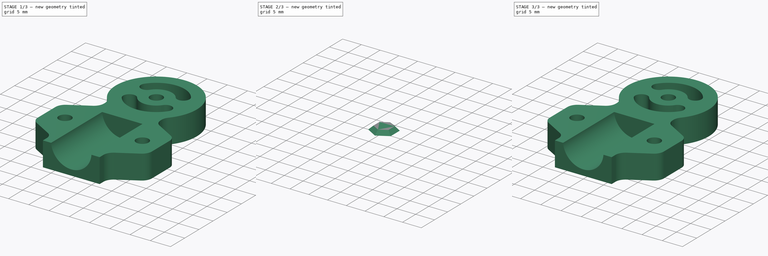
[diagram: build sequence overview — one tinted view per stage of 3, left to right]
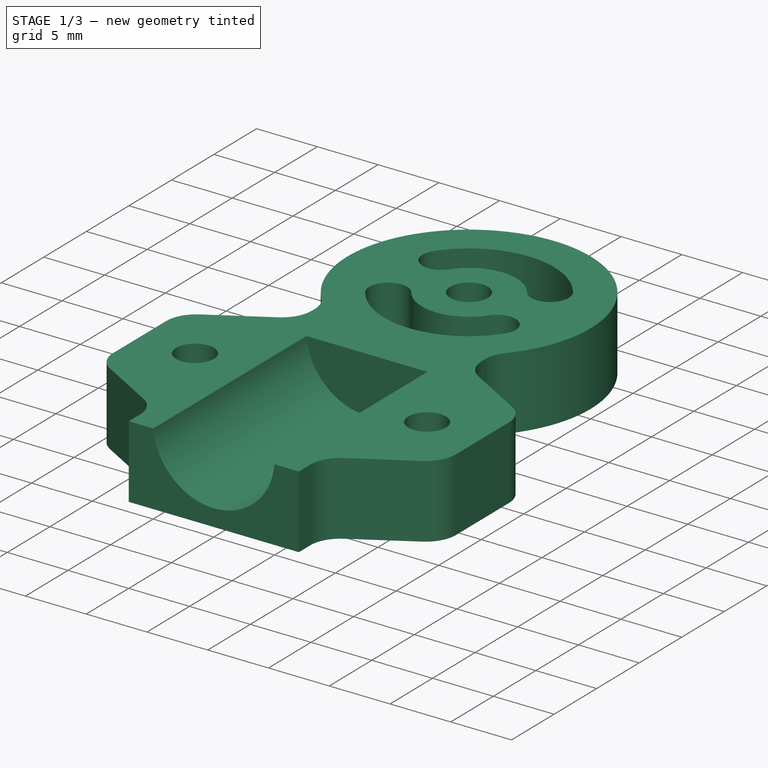
[diagram: stage 1 of 3 — iso view after this stage's code; geometry added in this stage tinted green]
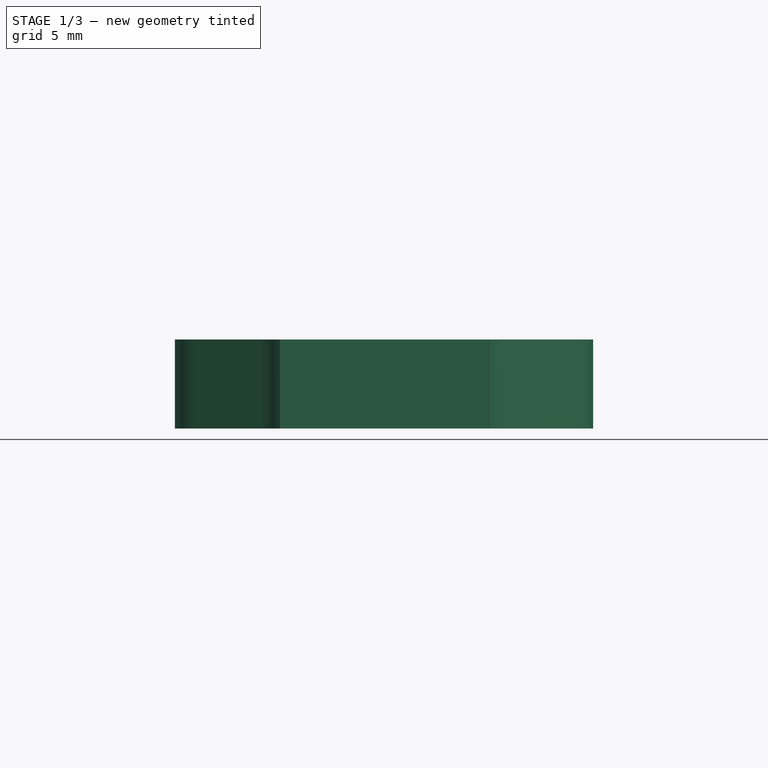
[diagram: stage 1 of 3 — front view after this stage's code; geometry added in this stage tinted green]
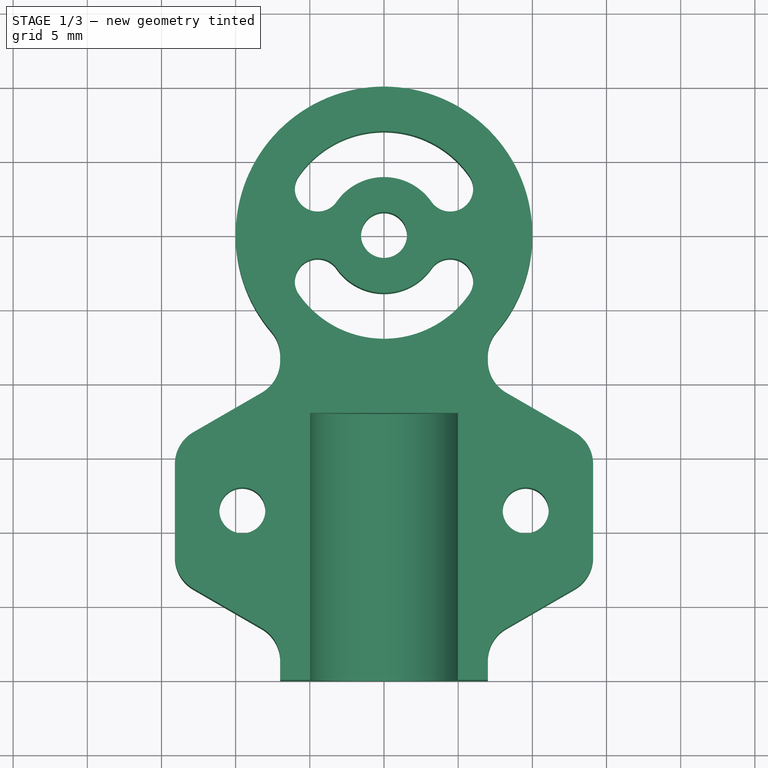
[diagram: stage 1 of 3 — top view after this stage's code; geometry added in this stage tinted green]
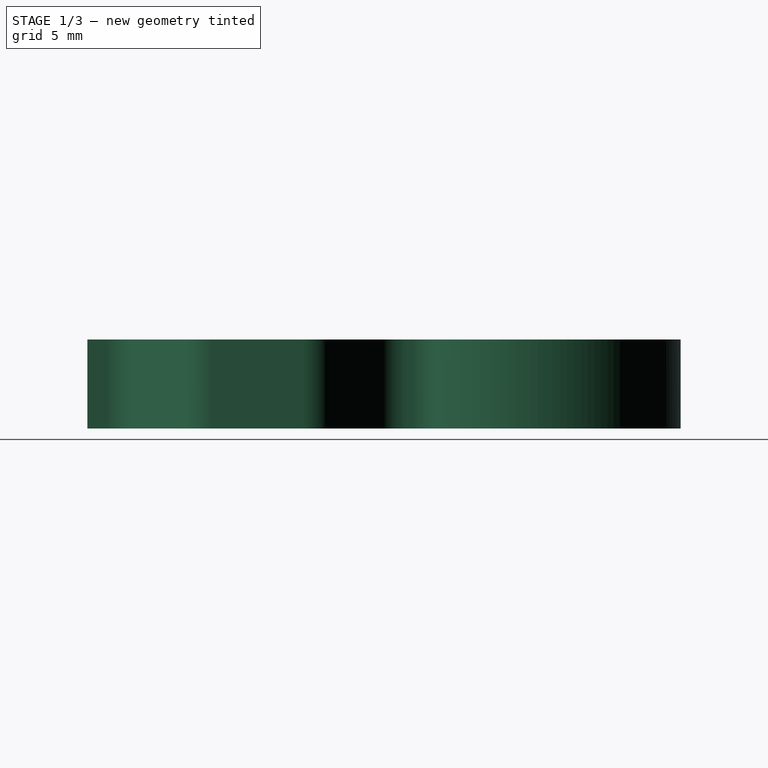
[diagram: stage 1 of 3 — right view after this stage's code; geometry added in this stage tinted green]
FCSTD DOCUMENT  (FreeCAD 0.16RUnknown)
Label: joint-i.003
License: All rights reserved
LicenseURL: http://en.wikipedia.org/wiki/All_rights_reserved
objects: Sketcher::SketchObject×4, Part::Extrusion×2, PartDesign::Pocket×2, Part::Cut×2, Part::Fillet×1, Part::Mirroring×1
note: 14 computed .brp shape members not serialized (recipe doc carries the construction recipe); baked Part::Feature solids carry a one-line shape summary decoded from their .brp

FEATURE [Sketcher::SketchObject] Sketch
  sketch-geometry (61):
    g0: LineSegment StartX=-7 StartY=-27.2199 StartZ=0 EndX=-7 EndY=-30 EndZ=0
    g1: LineSegment StartX=-7 StartY=-30 StartZ=0 EndX=7 EndY=-30 EndZ=0
    g2: LineSegment StartX=7 StartY=-30 StartZ=0 EndX=7 EndY=-27.2199 EndZ=0
    g3: LineSegment StartX=7 StartY=-27.2199 StartZ=0 EndX=14.1 EndY=-23.1207 EndZ=0
    g4: LineSegment StartX=14.1 StartY=-23.1207 StartZ=0 EndX=14.1 EndY=-14.0207 EndZ=0
    g5: LineSegment StartX=14.1 StartY=-14.0207 StartZ=0 EndX=7 EndY=-9.92153 EndZ=0
    g6: LineSegment StartX=7 StartY=-9.92153 StartZ=0 EndX=7 EndY=-7.14143 EndZ=0
    g7: LineSegment StartX=-7 StartY=-7.14143 StartZ=0 EndX=-7 EndY=-9.92153 EndZ=0
    g8: LineSegment StartX=-7 StartY=-9.92153 StartZ=0 EndX=-14.1 EndY=-14.0207 EndZ=0
    g9: LineSegment StartX=-14.1 StartY=-14.0207 StartZ=0 EndX=-14.1 EndY=-23.1207 EndZ=0
    g10: LineSegment StartX=-14.1 StartY=-23.1207 StartZ=0 EndX=-7 EndY=-27.2199 EndZ=0
    g11: LineSegment [constr] StartX=-14.1 StartY=-23.1207 StartZ=0 EndX=14.1 EndY=-23.1207 EndZ=0
    g12: LineSegment [constr] StartX=14.1 StartY=-14.0207 StartZ=0 EndX=-14.1 EndY=-14.0207 EndZ=0
    g13: ArcOfCircle [constr] CenterX=0 CenterY=0 CenterZ=0 NormalX=0 NormalY=0 NormalZ=1 Radius=10 StartAngle=3.93699 EndAngle=5.48779
    g14: ArcOfCircle CenterX=0 CenterY=0 CenterZ=0 NormalX=0 NormalY=0 NormalZ=1 Radius=10 StartAngle=5.48779 EndAngle=10.2202
    g15: LineSegment [constr] StartX=-7 StartY=-9.92153 StartZ=0 EndX=-7 EndY=-27.2199 EndZ=0
    g16: LineSegment [constr] StartX=7 StartY=-9.92153 StartZ=0 EndX=7 EndY=-27.2199 EndZ=0
    g17: GeomPoint [constr] X=0 Y=-10 Z=0
    g18: Circle CenterX=-9.55 CenterY=-18.5707 CenterZ=0 NormalX=0 NormalY=0 NormalZ=1 Radius=1.55
    g19: Circle CenterX=9.55 CenterY=-18.5707 CenterZ=0 NormalX=0 NormalY=0 NormalZ=1 Radius=1.55
    g20: ArcOfCircle [constr] CenterX=0 CenterY=0 CenterZ=0 NormalX=0 NormalY=0 NormalZ=1 Radius=7 StartAngle=2.53073 EndAngle=3.75246
    g21: ArcOfCircle [constr] CenterX=0 CenterY=0 CenterZ=0 NormalX=0 NormalY=0 NormalZ=1 Radius=3.9 StartAngle=2.53073 EndAngle=3.75246
    g22: ArcOfCircle [constr] CenterX=0 CenterY=0 CenterZ=0 NormalX=0 NormalY=0 NormalZ=1 Radius=3.9 StartAngle=5.67232 EndAngle=6.89405
    g23: ArcOfCircle [constr] CenterX=0 CenterY=0 CenterZ=0 NormalX=0 NormalY=0 NormalZ=1 Radius=7 StartAngle=5.67232 EndAngle=6.89405
    g24: ArcOfCircle CenterX=0 CenterY=0 CenterZ=0 NormalX=0 NormalY=0 NormalZ=1 Radius=3.9 StartAngle=0.610865 EndAngle=2.53073
    g25: ArcOfCircle CenterX=0 CenterY=0 CenterZ=0 NormalX=0 NormalY=0 NormalZ=1 Radius=7 StartAngle=0.610865 EndAngle=2.53073
    g26: ArcOfCircle CenterX=0 CenterY=0 CenterZ=0 NormalX=0 NormalY=0 NormalZ=1 Radius=3.9 StartAngle=3.75246 EndAngle=5.67232
    g27: ArcOfCircle CenterX=0 CenterY=0 CenterZ=0 NormalX=0 NormalY=0 NormalZ=1 Radius=7 StartAngle=3.75246 EndAngle=5.67232
    g28: LineSegment [constr] StartX=-5.73406 StartY=-4.01504 StartZ=0 EndX=-3.19469 EndY=-2.23695 EndZ=0
    g29: LineSegment [constr] StartX=-3.19469 StartY=-2.23695 StartZ=0 EndX=0 EndY=0 EndZ=0
    g30: LineSegment [constr] StartX=0 StartY=0 StartZ=0 EndX=3.19469 EndY=2.23695 EndZ=0
    g31: LineSegment [constr] StartX=3.19469 StartY=2.23695 StartZ=0 EndX=5.73406 EndY=4.01504 EndZ=0
    g32: LineSegment [constr] StartX=5.73406 StartY=4.01504 StartZ=0 EndX=8.19152 EndY=5.73576 EndZ=0
    g33: LineSegment [constr] StartX=-5.73406 StartY=4.01504 StartZ=0 EndX=-3.19469 EndY=2.23695 EndZ=0
    g34: LineSegment [constr] StartX=-3.19469 StartY=2.23695 StartZ=0 EndX=0 EndY=0 EndZ=0
    g35: LineSegment [constr] StartX=0 StartY=0 StartZ=0 EndX=3.19469 EndY=-2.23695 EndZ=0
    g36: LineSegment [constr] StartX=3.19469 StartY=-2.23695 StartZ=0 EndX=5.73406 EndY=-4.01504 EndZ=0
    g37: Circle CenterX=0 CenterY=0 CenterZ=0 NormalX=0 NormalY=0 NormalZ=1 Radius=1.55
    g38: LineSegment [constr] StartX=-3.19469 StartY=2.23695 StartZ=0 EndX=3.19469 EndY=2.23695 EndZ=0
    g39: ArcOfCircle CenterX=-4.46438 CenterY=3.12599 CenterZ=0 NormalX=0 NormalY=0 NormalZ=1 Radius=1.55 StartAngle=2.53073 EndAngle=5.67232
    g40: ArcOfCircle CenterX=-4.46438 CenterY=-3.12599 CenterZ=0 NormalX=0 NormalY=0 NormalZ=1 Radius=1.55 StartAngle=0.610865 EndAngle=3.75246
    g41: ArcOfCircle CenterX=4.46438 CenterY=-3.12599 CenterZ=0 NormalX=0 NormalY=0 NormalZ=1 Radius=1.55 StartAngle=5.67232 EndAngle=8.81391
    g42: ArcOfCircle CenterX=4.46438 CenterY=3.12599 CenterZ=0 NormalX=0 NormalY=0 NormalZ=1 Radius=1.55 StartAngle=3.75246 EndAngle=6.89405
    g43: LineSegment [constr] StartX=-14.1 StartY=-18.5707 StartZ=0 EndX=-11.1 EndY=-18.5707 EndZ=0
    g44: LineSegment [constr] StartX=-11.1 StartY=-18.5707 StartZ=0 EndX=-9.55 EndY=-18.5707 EndZ=0
    g45: LineSegment [constr] StartX=9.55 StartY=-18.5707 StartZ=0 EndX=11.1 EndY=-18.5707 EndZ=0
    g46: LineSegment [constr] StartX=11.1 StartY=-18.5707 StartZ=0 EndX=14.1 EndY=-18.5707 EndZ=0
    g47: LineSegment [constr] StartX=5 StartY=-30 StartZ=0 EndX=5 EndY=-12 EndZ=0
    g48: LineSegment [constr] StartX=5 StartY=-12 StartZ=0 EndX=-5 EndY=-12 EndZ=0
    g49: LineSegment [constr] StartX=-5 StartY=-12 StartZ=0 EndX=-5 EndY=-30 EndZ=0
    g50: LineSegment [constr] StartX=-9.55 StartY=-18.5707 StartZ=0 EndX=-8 EndY=-18.5707 EndZ=0
    g51: LineSegment [constr] StartX=-8 StartY=-18.5707 StartZ=0 EndX=-5 EndY=-18.5707 EndZ=0
    g52: LineSegment [constr] StartX=-5 StartY=-18.5707 StartZ=0 EndX=0 EndY=-18.5707 EndZ=0
    g53: LineSegment [constr] StartX=0 StartY=-18.5707 StartZ=0 EndX=5 EndY=-18.5707 EndZ=0
    g54: LineSegment [constr] StartX=5 StartY=-18.5707 StartZ=0 EndX=8 EndY=-18.5707 EndZ=0
    g55: LineSegment [constr] StartX=8 StartY=-18.5707 StartZ=0 EndX=9.55 EndY=-18.5707 EndZ=0
    g56: LineSegment [constr] StartX=-9.55 StartY=-14.0207 StartZ=0 EndX=-9.55 EndY=-17.0207 EndZ=0
    g57: LineSegment [constr] StartX=-9.55 StartY=-17.0207 StartZ=0 EndX=-9.55 EndY=-18.5707 EndZ=0
    g58: LineSegment [constr] StartX=-9.55 StartY=-18.5707 StartZ=0 EndX=-9.55 EndY=-20.1207 EndZ=0
    g59: LineSegment [constr] StartX=-9.55 StartY=-20.1207 StartZ=0 EndX=-9.55 EndY=-23.1207 EndZ=0
    g60: LineSegment [constr] StartX=-7 StartY=-7.14143 StartZ=0 EndX=7 EndY=-7.14143 EndZ=0
  constraints (169):
    c: Vertical(g0)
    c: Coincident(g0,g1)
    c: Horizontal(g1)
    c: Coincident(g1,g2)
    c: Vertical(g2)
    c: Coincident(g2,g3)
    c: Coincident(g3,g4)
    c: Vertical(g4)
    c: Coincident(g4,g5)
    c: Coincident(g5,g6)
    c: Vertical(g6)
    c: Vertical(g7)
    c: Coincident(g7,g8)
    c: Coincident(g8,g9)
    c: Vertical(g9)
    c: Coincident(g9,g10)
    c: Coincident(g0,g10)
    c: Horizontal(g11)
    c: Horizontal(g12)
    c: Coincident(g8,g12)
    c: Coincident(g9,g11)
    c: Coincident(g3,g11)
    c: Coincident(g4,g12)
    c: Coincident(g7,g13)
    c: Coincident(g7,g14)
    c: Coincident(g6,g13)
    c: Coincident(g6,g14)
    c: Coincident(g13,g14)
    c: Vertical(g15)
    c: Vertical(g16)
    c: Coincident(g2,g16)
    c: Coincident(g5,g16)
    c: Coincident(g7,g15)
    c: Coincident(g0,g15)
    c: Equal(g8,g5)
    c: Equal(g5,g10)
    c: Equal(g10,g3)
    c: Coincident(g13,g-1)
    c: DistanceX(g1,g1) = 14
    c: Radius(g14) = 10
    c: PointOnObject(g17,g13)
    c: PointOnObject(g17,g-2)
    c: DistanceY(g1,g17) = 20
    c: Equal(g19,g18)
    c: Radius(g18) = 1.55
    c: Coincident(g13,g20)
    c: Coincident(g13,g21)
    c: Coincident(g13,g22)
    c: Coincident(g13,g23)
    c: Coincident(g13,g24)
    c: Coincident(g13,g25)
    c: Coincident(g13,g26)
    c: Coincident(g13,g27)
    c: Coincident(g23,g25)
    c: Coincident(g20,g25)
    c: Coincident(g21,g24)
    c: Coincident(g22,g24)
    c: Coincident(g22,g26)
    c: Coincident(g21,g26)
    c: Coincident(g20,g27)
    c: Coincident(g23,g27)
    c: Coincident(g28,g29)
    c: Coincident(g29,g30)
    c: Coincident(g30,g31)
    c: Coincident(g31,g32)
    c: PointOnObject(g32,g14)
    c: Coincident(g23,g31)
    c: Coincident(g22,g30)
    c: Coincident(g13,g29)
    c: Coincident(g21,g28)
    c: Coincident(g20,g28)
    c: Parallel(g28,g29)
    c: Parallel(g29,g30)
    c: Parallel(g30,g31)
    c: Parallel(g31,g32)
    c: Coincident(g33,g34)
    c: Coincident(g34,g35)
    c: Coincident(g35,g36)
    c: Coincident(g23,g36)
    c: Coincident(g22,g35)
    c: Coincident(g13,g34)
    c: Coincident(g21,g33)
    c: Coincident(g20,g33)
    c: Parallel(g33,g34)
    c: Parallel(g34,g35)
    c: Parallel(g35,g36)
    c: Distance(g32) = 3
    c: Distance(g31) = 3.1
    c: Coincident(g13,g37)
    c: Equal(g37,g18)
    c: Horizontal(g38)
    c: Coincident(g22,g38)
    c: Coincident(g21,g38)
    c: Angle(g34,g29) = 1.22173
    c: Coincident(g22,g42)
    c: Coincident(g23,g42)
    c: Coincident(g21,g39)
    c: Coincident(g20,g39)
    c: Coincident(g21,g40)
    c: Coincident(g20,g40)
    c: Coincident(g22,g41)
    c: Coincident(g23,g41)
    c: PointOnObject(g41,g36)
    c: PointOnObject(g42,g31)
    c: PointOnObject(g39,g33)
    c: PointOnObject(g40,g28)
    c: Horizontal(g43)
    c: Coincident(g43,g44)
    c: Horizontal(g44)
    c: Horizontal(g45)
    c: Coincident(g45,g46)
    c: Horizontal(g46)
    c: PointOnObject(g43,g9)
    c: Coincident(g18,g44)
    c: PointOnObject(g43,g18)
    c: PointOnObject(g46,g4)
    c: PointOnObject(g45,g19)
    c: DistanceX(g43,g43) = 3
    c: Coincident(g47,g48)
    c: Coincident(g48,g49)
    c: Horizontal(g48)
    c: Vertical(g47)
    c: Vertical(g49)
    c: PointOnObject(g49,g1)
    c: PointOnObject(g47,g1)
    c: DistanceX(g48,g48) = 10
    c: Horizontal(g50)
    c: Coincident(g50,g51)
    c: Horizontal(g51)
    c: Coincident(g51,g52)
    c: Horizontal(g52)
    c: Coincident(g52,g53)
    c: Horizontal(g53)
    c: Coincident(g53,g54)
    c: Horizontal(g54)
    c: Coincident(g54,g55)
    c: Horizontal(g55)
    c: Coincident(g19,g45)
    c: Coincident(g19,g55)
    c: PointOnObject(g54,g19)
    c: PointOnObject(g53,g47)
    c: PointOnObject(g51,g49)
    c: PointOnObject(g50,g18)
    c: Coincident(g18,g50)
    c: PointOnObject(g52,g-2)
    c: Equal(g52,g53)
    c: DistanceY(g47,g17) = 2
    c: Vertical(g56)
    c: Coincident(g56,g57)
    c: Vertical(g57)
    c: Coincident(g57,g58)
    c: Vertical(g58)
    c: Coincident(g58,g59)
    c: Vertical(g59)
    c: Coincident(g18,g57)
    c: PointOnObject(g56,g18)
    c: PointOnObject(g56,g12)
    c: PointOnObject(g59,g11)
    c: PointOnObject(g58,g18)
    c: Equal(g43,g56)
    c: Equal(g56,g59)
    c: Equal(g59,g51)
    c: Equal(g51,g54)
    c: Equal(g54,g46)
    c: Equal(g7,g0)
    c: Horizontal(g60)
    c: Coincident(g6,g60)
    c: Coincident(g7,g60)
    c: Angle(g8,g15) = 1.0472
FEATURE [Part::Extrusion] Extrude
  Base = -> Sketch
  Dir = (0,0,6)
  Solid = true
FEATURE [Sketcher::SketchObject] Sketch001
  ExternalGeometry = -> [Extrude]
  Placement = pos=(0,-30,0) rot=(1,0,0;1.5708rad)
  Support = -> Extrude [Face2]
  sketch-geometry (5):
    g0: LineSegment [constr] StartX=-7 StartY=6 StartZ=0 EndX=-7 EndY=6.4 EndZ=0
    g1: LineSegment [constr] StartX=-7 StartY=6.4 StartZ=0 EndX=0 EndY=6.4 EndZ=0
    g2: LineSegment [constr] StartX=0 StartY=6.4 StartZ=0 EndX=7 EndY=6.4 EndZ=0
    g3: LineSegment [constr] StartX=7 StartY=6.4 StartZ=0 EndX=7 EndY=6 EndZ=0
    g4: Circle CenterX=0 CenterY=6.4 CenterZ=0 NormalX=0 NormalY=0 NormalZ=1 Radius=5
  constraints (13):
    c: Vertical(g0)
    c: Coincident(g0,g1)
    c: Horizontal(g1)
    c: Coincident(g1,g2)
    c: Horizontal(g2)
    c: Coincident(g2,g3)
    c: Vertical(g3)
    c: Coincident(g3,g-3)
    c: Coincident(g0,g-3)
    c: PointOnObject(g1,g-2)
    c: DistanceY(g0,g0) = 0.4
    c: Coincident(g1,g4)
    c: Radius(g4) = 5
FEATURE [PartDesign::Pocket] Pocket
  Length = 18
  Sketch = -> Sketch001
  Type = 0
FEATURE [Part::Fillet] Fillet
  Base = -> Pocket
  Edges = 10 edges r=2.5: [Edge1,Edge5,Edge56,Edge57,Edge59,Edge60,Edge61,Edge62,Edge63,Edge64]
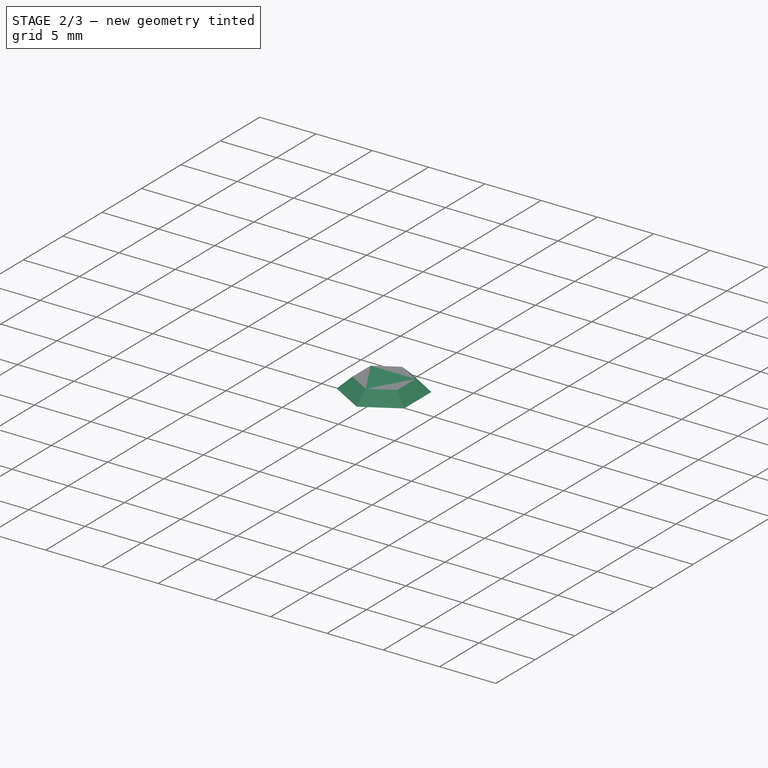
[diagram: stage 2 of 3 — iso view after this stage's code; geometry added in this stage tinted green]
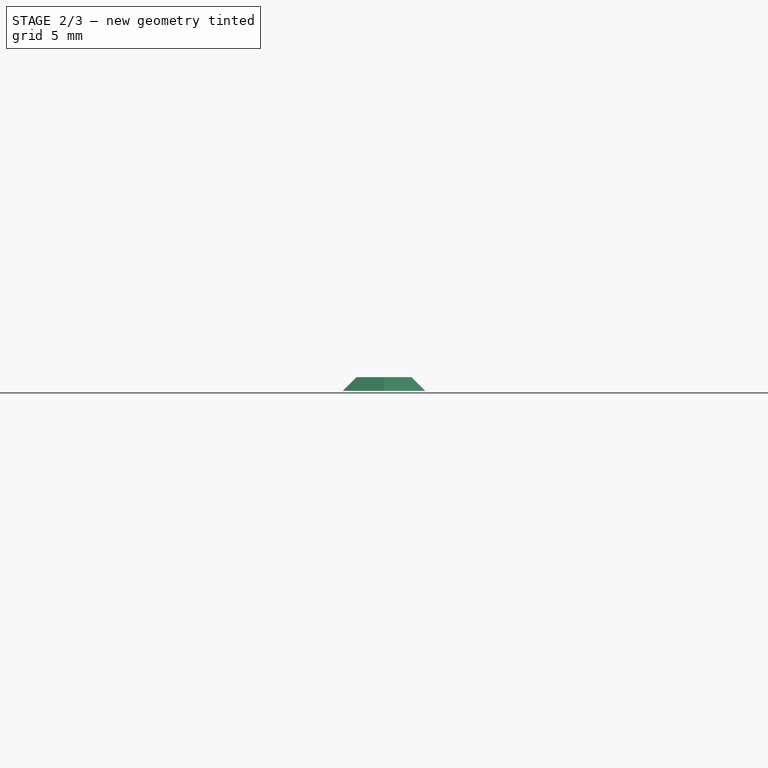
[diagram: stage 2 of 3 — front view after this stage's code; geometry added in this stage tinted green]
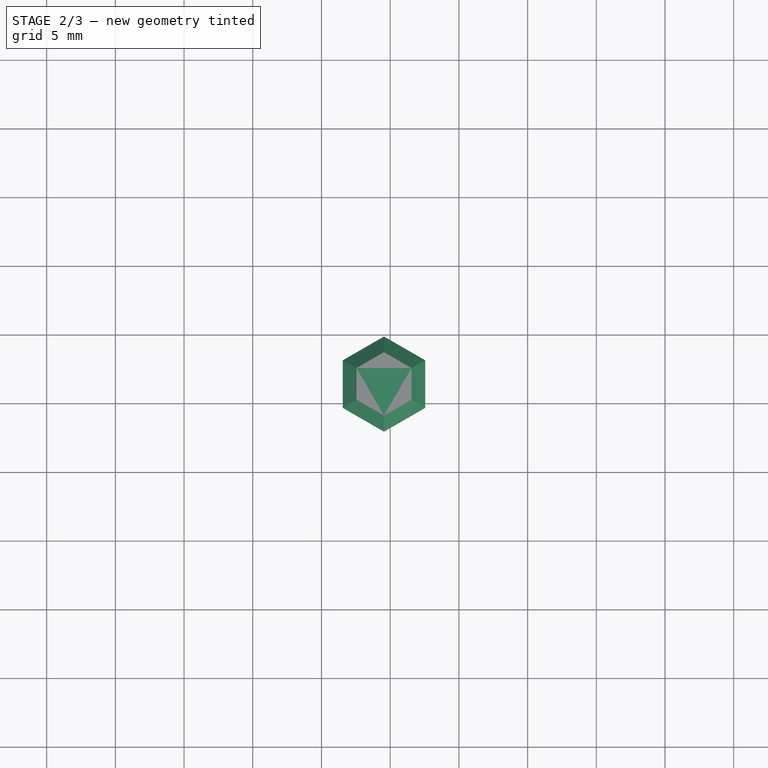
[diagram: stage 2 of 3 — top view after this stage's code; geometry added in this stage tinted green]
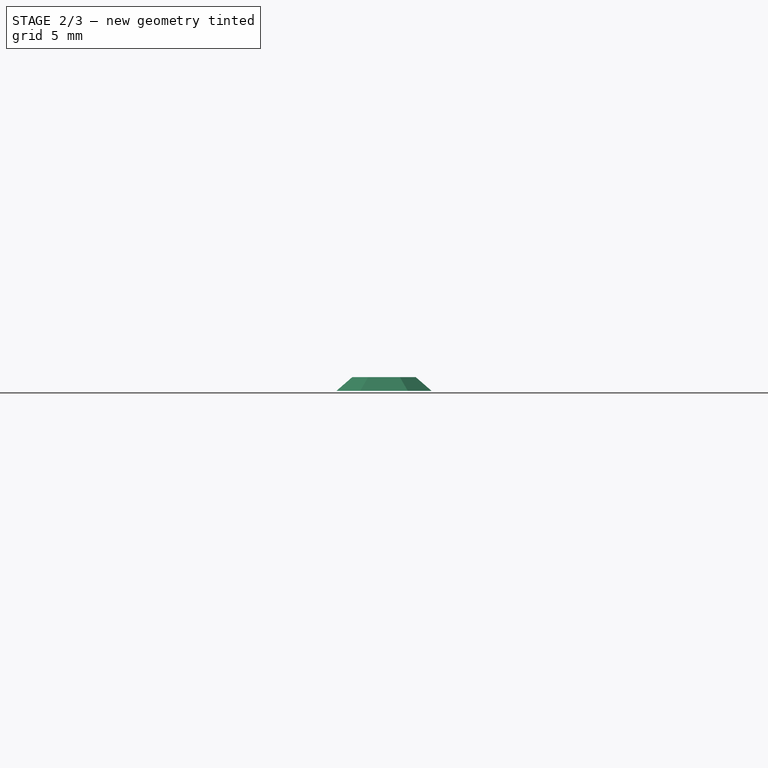
[diagram: stage 2 of 3 — right view after this stage's code; geometry added in this stage tinted green]
FEATURE [Sketcher::SketchObject] Sketch002
  ExternalGeometry = -> [Fillet]
  Placement = pos=(0,0,0) rot=(1,0,0;3.14159rad)
  Support = -> Fillet [Face2]
  sketch-geometry (14):
    g0: Circle [constr] CenterX=-9.55 CenterY=18.5707 CenterZ=0 NormalX=0 NormalY=0 NormalZ=1 Radius=3.4641
    g1: Circle [constr] CenterX=9.55 CenterY=18.5707 CenterZ=0 NormalX=0 NormalY=0 NormalZ=1 Radius=3.4641
    g2: LineSegment StartX=-12.55 StartY=16.8387 StartZ=0 EndX=-12.55 EndY=20.3028 EndZ=0
    g3: LineSegment StartX=-12.55 StartY=20.3028 StartZ=0 EndX=-9.55 EndY=22.0348 EndZ=0
    g4: LineSegment StartX=-9.55 StartY=22.0348 StartZ=0 EndX=-6.55 EndY=20.3028 EndZ=0
    g5: LineSegment StartX=-6.55 StartY=20.3028 StartZ=0 EndX=-6.55 EndY=16.8387 EndZ=0
    g6: LineSegment StartX=-6.55 StartY=16.8387 StartZ=0 EndX=-9.55 EndY=15.1066 EndZ=0
    g7: LineSegment StartX=-9.55 StartY=15.1066 StartZ=0 EndX=-12.55 EndY=16.8387 EndZ=0
    g8: LineSegment StartX=6.55 StartY=16.8387 StartZ=0 EndX=6.55 EndY=20.3028 EndZ=0
    g9: LineSegment StartX=6.55 StartY=20.3028 StartZ=0 EndX=9.55 EndY=22.0348 EndZ=0
    g10: LineSegment StartX=9.55 StartY=22.0348 StartZ=0 EndX=12.55 EndY=20.3028 EndZ=0
    g11: LineSegment StartX=12.55 StartY=20.3028 StartZ=0 EndX=12.55 EndY=16.8387 EndZ=0
    g12: LineSegment StartX=12.55 StartY=16.8387 StartZ=0 EndX=9.55 EndY=15.1066 EndZ=0
    g13: LineSegment StartX=9.55 StartY=15.1066 StartZ=0 EndX=6.55 EndY=16.8387 EndZ=0
  constraints (40):
    c: Vertical(g2)
    c: Coincident(g2,g3)
    c: Coincident(g3,g4)
    c: Coincident(g4,g5)
    c: Vertical(g5)
    c: Coincident(g5,g6)
    c: Coincident(g6,g7)
    c: Vertical(g8)
    c: Coincident(g8,g9)
    c: Coincident(g9,g10)
    c: Coincident(g10,g11)
    c: Vertical(g11)
    c: Coincident(g11,g12)
    c: Coincident(g12,g13)
    c: Coincident(g8,g13)
    c: Coincident(g2,g7)
    c: Equal(g2,g3)
    c: Equal(g3,g4)
    c: Equal(g4,g5)
    c: Equal(g5,g6)
    c: Equal(g6,g7)
    c: PointOnObject(g3,g0)
    c: PointOnObject(g2,g0)
    c: PointOnObject(g2,g0)
    c: PointOnObject(g4,g0)
    c: PointOnObject(g5,g0)
    c: Coincident(g-3,g0)
    c: Equal(g8,g9)
    c: Equal(g9,g10)
    c: Equal(g10,g11)
    c: Equal(g11,g12)
    c: Equal(g12,g13)
    c: PointOnObject(g9,g1)
    c: PointOnObject(g8,g1)
    c: PointOnObject(g10,g1)
    c: PointOnObject(g8,g1)
    c: PointOnObject(g11,g1)
    c: Coincident(g1,g-4)
    c: Equal(g1,g0)
    c: DistanceX(g2,g4) = 6
FEATURE [PartDesign::Pocket] Pocket001
  Length = 2
  Sketch = -> Sketch002
  Type = 0
FEATURE [Sketcher::SketchObject] Sketch003
  ExternalGeometry = -> [Pocket001]
  Placement = pos=(0,0,2) rot=(1,0,0;3.14159rad)
  Support = -> Pocket001 [Face50]
  sketch-geometry (6):
    g0: LineSegment StartX=6.55 StartY=16.8387 StartZ=0 EndX=6.55 EndY=20.3028 EndZ=0
    g1: LineSegment StartX=6.55 StartY=20.3028 StartZ=0 EndX=9.55 EndY=22.0348 EndZ=0
    g2: LineSegment StartX=9.55 StartY=22.0348 StartZ=0 EndX=12.55 EndY=20.3028 EndZ=0
    g3: LineSegment StartX=12.55 StartY=20.3028 StartZ=0 EndX=12.55 EndY=16.8387 EndZ=0
    g4: LineSegment StartX=12.55 StartY=16.8387 StartZ=0 EndX=9.55 EndY=15.1066 EndZ=0
    g5: LineSegment StartX=9.55 StartY=15.1066 StartZ=0 EndX=6.55 EndY=16.8387 EndZ=0
  constraints (12):
    c: Coincident(g0,g1)
    c: Coincident(g1,g2)
    c: Coincident(g2,g3)
    c: Coincident(g3,g4)
    c: Coincident(g4,g5)
    c: Coincident(g0,g5)
    c: Coincident(g0,g-8)
    c: Coincident(g0,g-8)
    c: Coincident(g1,g-4)
    c: Coincident(g2,g-5)
    c: Coincident(g3,g-6)
    c: Coincident(g4,g-7)
FEATURE [Part::Extrusion] Extrude001
  Base = -> Sketch003
  Dir = (0,0,1)
  Solid = true
  TaperAngle = -45
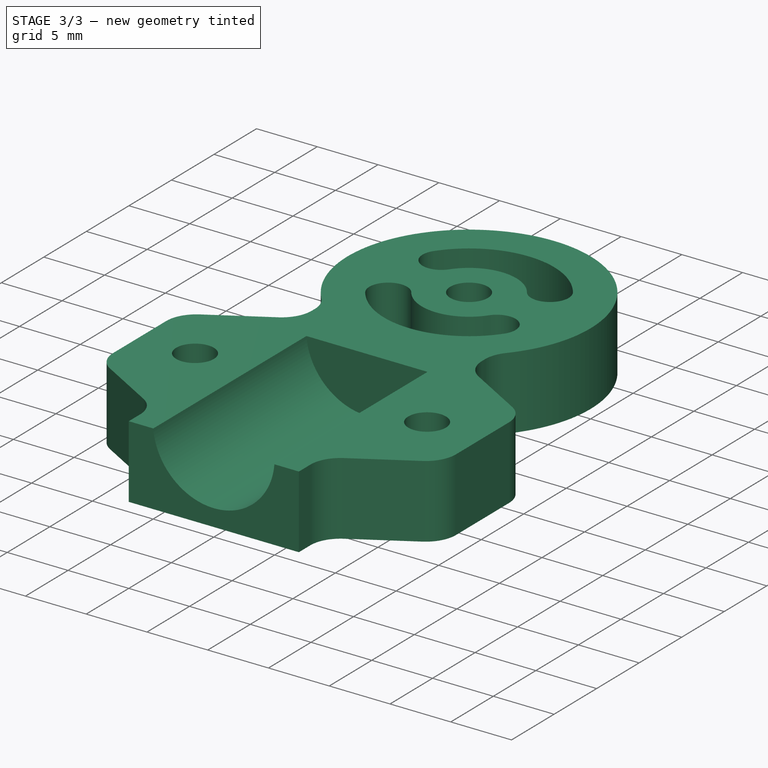
[diagram: stage 3 of 3 — iso view after this stage's code; geometry added in this stage tinted green]
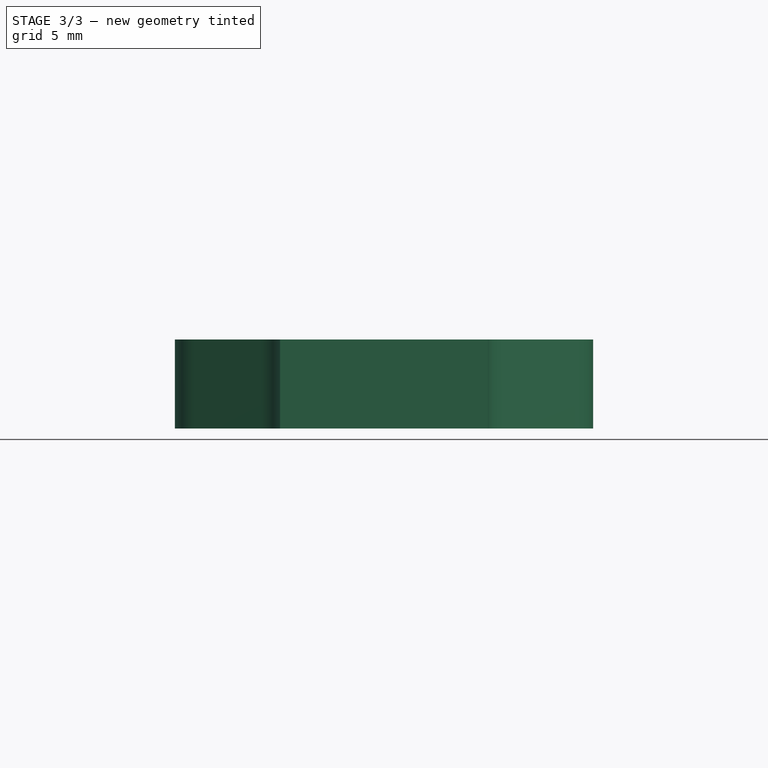
[diagram: stage 3 of 3 — front view after this stage's code; geometry added in this stage tinted green]
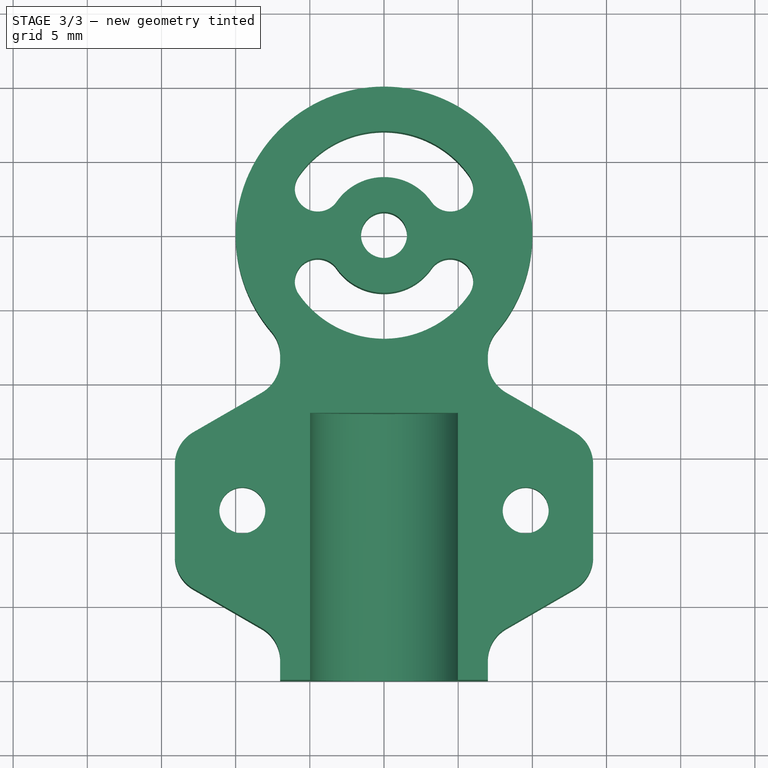
[diagram: stage 3 of 3 — top view after this stage's code; geometry added in this stage tinted green]
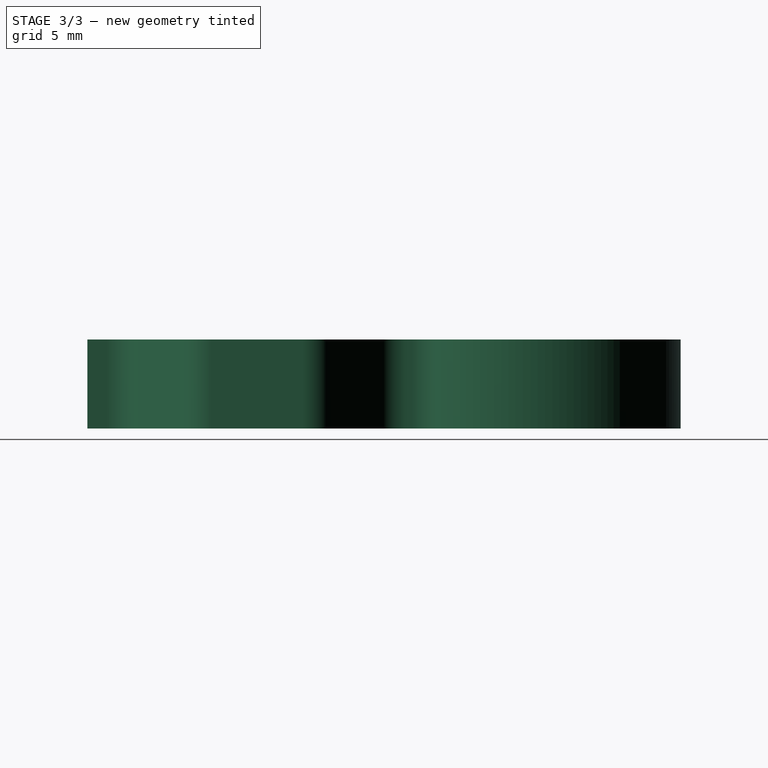
[diagram: stage 3 of 3 — right view after this stage's code; geometry added in this stage tinted green]
FEATURE [Part::Cut] Cut
  Base = -> Pocket001
  Tool = -> Extrude001
FEATURE [Part::Mirroring] Part__Mirroring  label="Extrude001 (Mirror #1)"
  Base = (0,0,0)
  Normal = (1,0,0)
  Source = -> Extrude001
FEATURE [Part::Cut] Cut001
  Base = -> Cut
  Tool = -> Part__Mirroring
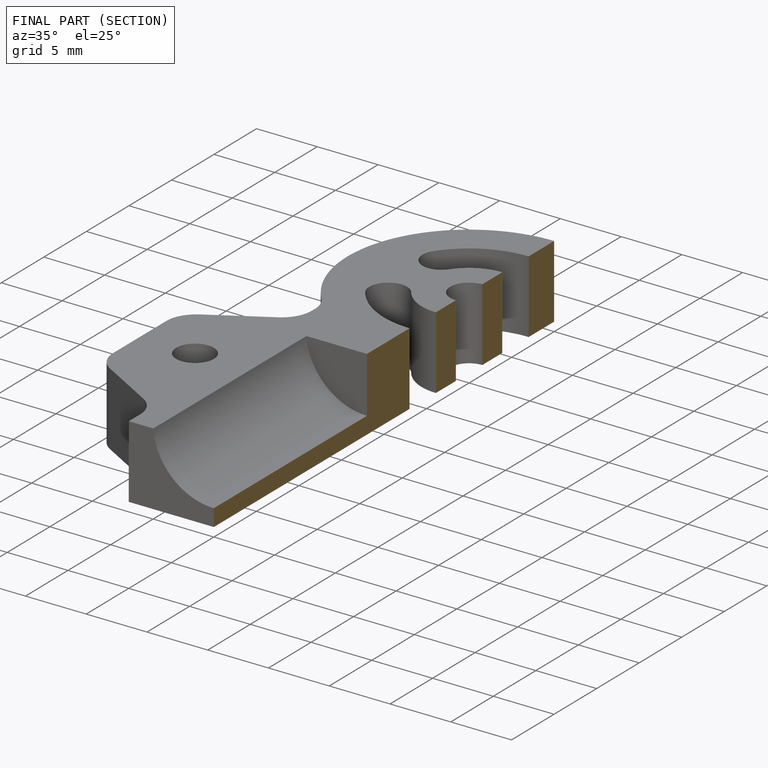
[diagram: finished part — half-section view (interior)]
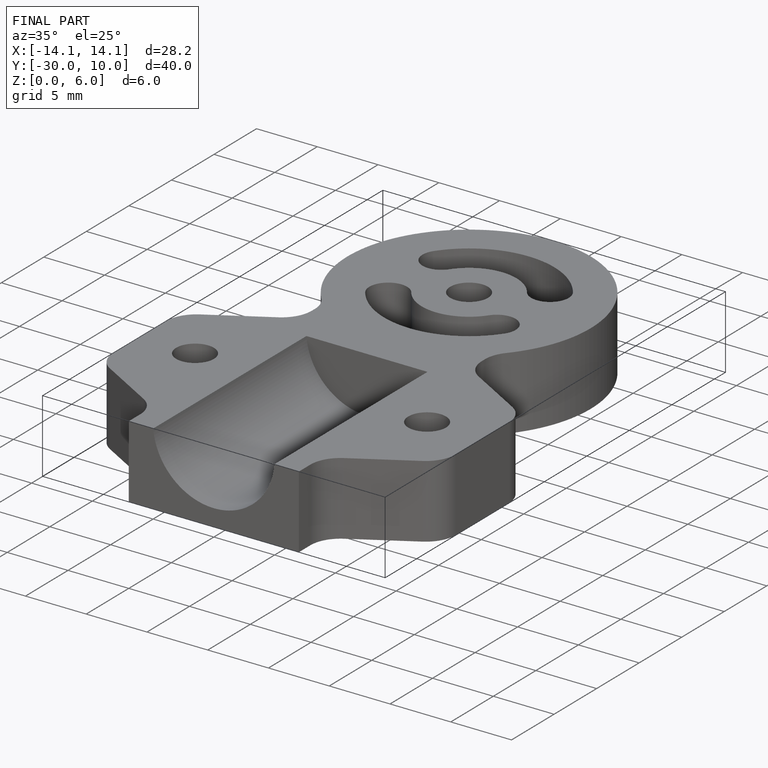
[diagram: finished part — iso view with bounding-box wireframe]
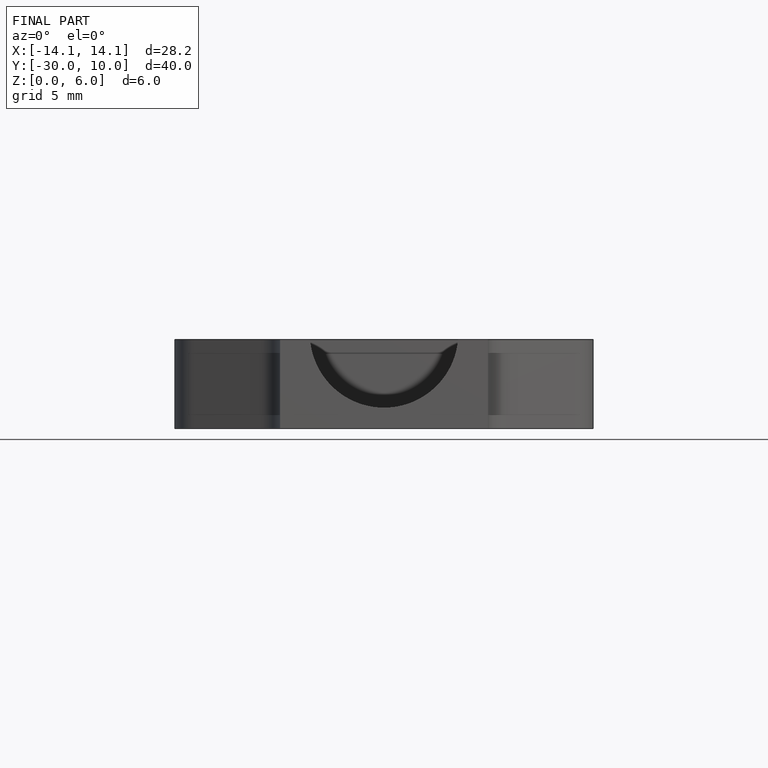
[diagram: finished part — front view with bounding-box wireframe]
